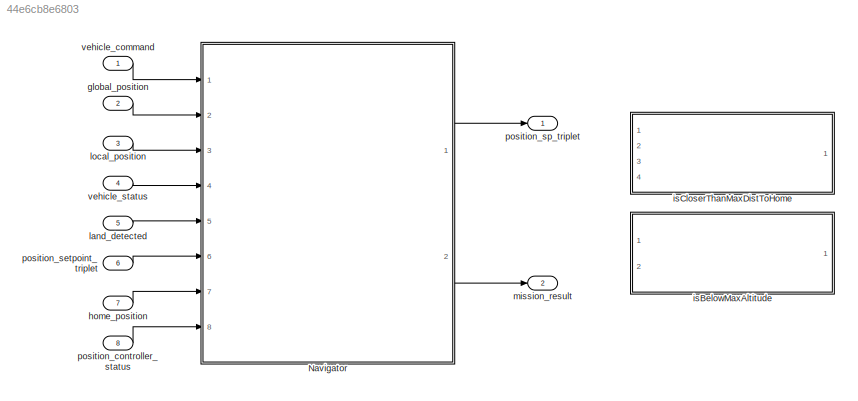
MODEL slx_44e6cb8e6803
KIND model
CONFIG AbsTol = auto
CONFIG EnableMultiTasking = off
CONFIG FixedStep = 0.05
CONFIG MaxStep = auto
CONFIG MinStep = auto
CONFIG RelTol = 1e-3
CONFIG SampleTimeConstraint = Unconstrained
CONFIG SolverName = FixedStepAuto
CONFIG StartTime = 0.0
CONFIG StopTime = 10.0
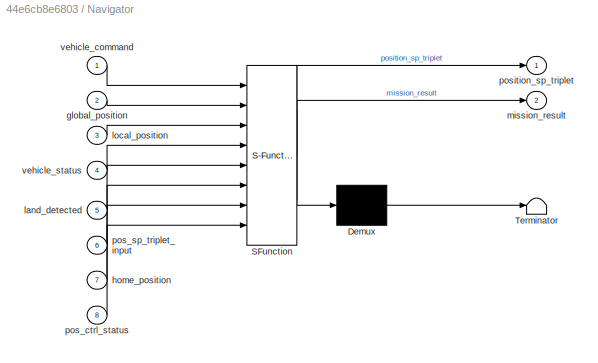
BLOCK [SubSystem] Navigator
  ErrorFcn = Stateflow.Translate.translate
  PermitHierarchicalResolution = ExplicitOnly
  Ports = [8, 2]
  RequestExecContextInheritance = off
  SFBlockType = Chart
  TreatAsAtomicUnit = on
BLOCK [Demux] Navigator/ Demux 
  Outputs = 1
  Ports = [1, 1]
BLOCK [S-Function] Navigator/ SFunction 
  EnableBusSupport = on
  FunctionName = sf_sfun
  Parameters = CONSTANTS_RADIUS_OF_EARTH,GF_ACTION,MIS_LTRMIN_ALT,MIS_TAKEOFF_ALT,MIS_YAW_ERR,MIS_YAW_TMT,MPC_ACC_HOR,MPC_JERK_AUTO,NAV_ACC_RAD,NAV_FW_ALTL_RAD,NAV_FW_ALT_RAD,NAV_GPSF_LT,NAV_GPSF_P,NAV_GPSF_R,NAV_GPSF_TR,NAV_LOITER_RAD,NAV_MC_ALT_RAD,RTL_CONE_ANG,RTL_DESCEND_ALT,RTL_LAND_DELAY,RTL_LOITER_RAD,RTL_MIN_DIST,RTL_PLD_MD,RTL_RETURN_ALT,RTL_TYPE,VT_B_DEC_MSS,VT_B_REV_DEL
  PortCounts = [8 3]
  Ports = [8, 3]
  SFcnIsStateOwnerBlock = off
  SFunctionDeploymentMode = off
  Tag = Stateflow S-Function 3
BLOCK [Terminator] Navigator/ Terminator 
BLOCK [Inport] Navigator/global_position
  Port = 2
BLOCK [Inport] Navigator/home_position
  Port = 7
BLOCK [Inport] Navigator/land_detected
  Port = 5
BLOCK [Inport] Navigator/local_position
  Port = 3
BLOCK [Outport] Navigator/mission_result
  Port = 2
BLOCK [Inport] Navigator/pos_ctrl_status
  Port = 8
BLOCK [Inport] Navigator/pos_sp_triplet_input
  Port = 6
BLOCK [Outport] Navigator/position_sp_triplet
BLOCK [Inport] Navigator/vehicle_command
BLOCK [Inport] Navigator/vehicle_status
  Port = 4
BLOCK [Inport] global_position
  OutDataTypeStr = Bus: px4_vehicle_global_position
  Port = 2
BLOCK [Inport] home_position
  OutDataTypeStr = Bus: px4_home_position
  Port = 7
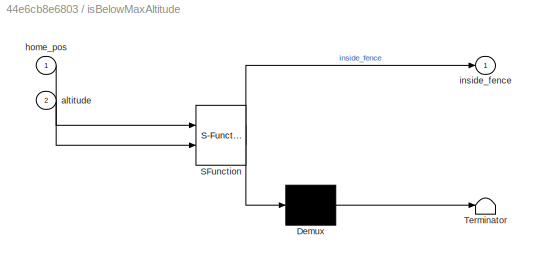
BLOCK [SubSystem] isBelowMaxAltitude
  Commented = on
  ErrorFcn = Stateflow.Translate.translate
  PermitHierarchicalResolution = ExplicitOnly
  Ports = [2, 1]
  RequestExecContextInheritance = off
  SFBlockType = MATLAB Function
  TreatAsAtomicUnit = on
BLOCK [Demux] isBelowMaxAltitude/ Demux 
  Outputs = 1
  Ports = [1, 1]
BLOCK [S-Function] isBelowMaxAltitude/ SFunction 
  EnableBusSupport = on
  FunctionName = sf_sfun
  Parameters = GF_ACTION,GF_MAX_HOR_DIST,GF_MAX_VER_DIST
  PortCounts = [2 2]
  Ports = [2, 2]
  SFcnIsStateOwnerBlock = off
  SFunctionDeploymentMode = off
  Tag = Stateflow S-Function 1
BLOCK [Terminator] isBelowMaxAltitude/ Terminator 
BLOCK [Inport] isBelowMaxAltitude/altitude
  Port = 2
BLOCK [Inport] isBelowMaxAltitude/home_pos
BLOCK [Outport] isBelowMaxAltitude/inside_fence
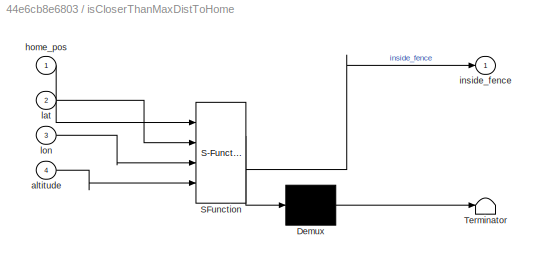
BLOCK [SubSystem] isCloserThanMaxDistToHome
  Commented = on
  ErrorFcn = Stateflow.Translate.translate
  PermitHierarchicalResolution = ExplicitOnly
  Ports = [4, 1]
  RequestExecContextInheritance = off
  SFBlockType = MATLAB Function
  TreatAsAtomicUnit = on
BLOCK [Demux] isCloserThanMaxDistToHome/ Demux 
  Outputs = 1
  Ports = [1, 1]
BLOCK [S-Function] isCloserThanMaxDistToHome/ SFunction 
  EnableBusSupport = on
  FunctionName = sf_sfun
  Parameters = CONSTANTS_RADIUS_OF_EARTH,GF_ACTION,GF_MAX_HOR_DIST,GF_MAX_VER_DIST
  PortCounts = [4 2]
  Ports = [4, 2]
  SFcnIsStateOwnerBlock = off
  SFunctionDeploymentMode = off
  Tag = Stateflow S-Function 2
BLOCK [Terminator] isCloserThanMaxDistToHome/ Terminator 
BLOCK [Inport] isCloserThanMaxDistToHome/altitude
  Port = 4
BLOCK [Inport] isCloserThanMaxDistToHome/home_pos
BLOCK [Outport] isCloserThanMaxDistToHome/inside_fence
BLOCK [Inport] isCloserThanMaxDistToHome/lat
  Port = 2
BLOCK [Inport] isCloserThanMaxDistToHome/lon
  Port = 3
BLOCK [Inport] land_detected
  OutDataTypeStr = Bus: px4_vehicle_land_detected
  Port = 5
BLOCK [Inport] local_position
  OutDataTypeStr = Bus: px4_vehicle_local_position
  Port = 3
BLOCK [Outport] mission_result
  Port = 2
BLOCK [Inport] position_controller_status
  OutDataTypeStr = Bus: px4_position_controller_status
  Port = 8
BLOCK [Inport] position_setpoint_triplet
  OutDataTypeStr = Bus: px4_position_setpoint_triplet
  Port = 6
BLOCK [Outport] position_sp_triplet
BLOCK [Inport] vehicle_command
  OutDataTypeStr = Bus: px4_vehicle_command
BLOCK [Inport] vehicle_status
  OutDataTypeStr = Bus: px4_vehicle_status
  Port = 4
LINE Navigator:1 -> position_sp_triplet:1
LINE Navigator:2 -> mission_result:1
LINE global_position:1 -> Navigator:2
LINE home_position:1 -> Navigator:7
LINE land_detected:1 -> Navigator:5
LINE local_position:1 -> Navigator:3
LINE position_controller_status:1 -> Navigator:8
LINE position_setpoint_triplet:1 -> Navigator:6
LINE vehicle_command:1 -> Navigator:1
LINE vehicle_status:1 -> Navigator:4
CHART Navigator states=88 transitions=74
  STATE_LABEL 'navigator'
  STATE_LABEL 'COMMAND_SUB'
  STATE_LABEL 'CMD_DO_GO_AROUND\nen:\n% 临时给输出赋值，后续删除\nposition_sp_triplet = pos_sp_triplet_input;\nmission_result.timestamp = uint64(getSimulationTime);\n%\n'
  STATE_LABEL 'not_running\n'
  STATE_LABEL 'running\nen:\n%publish_vehicle_command_ack(cmd, vehicle_command_s::VEHICLE_CMD_RESULT_ACCEPTED);'
  STATE_LABEL '[vehicle_command.command == PX4_VEHICLE_COMMAND.VEHICLE_CMD_DO_GO_AROUND]'
  STATE_LABEL '[vehicle_command.command ~= PX4_VEHICLE_COMMAND.VEHICLE_CMD_DO_GO_AROUND]'
  STATE_LABEL 'CMD_DO_REPOSITION\n'
  STATE_LABEL 'not_running\n\n'
  STATE_LABEL 'running\nen:\nget_reposition_setpoint;\n'
  STATE_LABEL 'get_reposition_setpoint'
  STATE_LABEL 'SCRIPT:\nfunction get_reposition_setpoint\n\n%% 判断reposition是否在禁飞区内\nif (GF_ACTION ~= PX4_GEOFENCE_RESULT.GF_ACTION_NONE &&  GF_ACTION ~= PX4_GEOFENCE_RESULT.GF_ACTION_WARN)\n    %mavlink_log_critical(&_mavlink_log_pub, "Reposition is outside geofence\\t");\n    %events::send(events::ID("navigator_reposition_outside_geofence"), {events::Log::Error, events::LogInternal::Info},\n    %"Reposition is outside ...<+3259ch>'
  STATE_LABEL '[vehicle_command.command == PX4_VEHICLE_COMMAND.VEHICLE_CMD_DO_REPOSITION ]'
  STATE_LABEL '[vehicle_command.command ~= PX4_VEHICLE_COMMAND.VEHICLE_CMD_DO_REPOSITION]'
  STATE_LABEL 'CMD_NAV_TAKEOFF'
  STATE_LABEL 'not_running\n'
  STATE_LABEL 'running\nen:\n% 前一航点\nif ((home_position.timestamp > 0) && home_position.valid_alt && home_position.valid_hpos && home_position.valid_lpos)\n    takeoff_triplet_.previous.valid = true;\n    takeoff_triplet_.previous.timestamp = uint64(getSimulationTime);\nelse\n    takeoff_triplet_.previous.valid = false;\nend\ntakeoff_triplet_.previous.lat = global_position.lat;\ntakeoff_triplet_.previous.lon = global_posi...<+1077ch>'
  STATE_LABEL '[vehicle_command.command == PX4_VEHICLE_COMMAND.VEHICLE_CMD_NAV_TAKEOFF]'
  STATE_LABEL '[vehicle_command.command ~= PX4_VEHICLE_COMMAND.VEHICLE_CMD_NAV_TAKEOFF]'
  STATE_LABEL 'CMD_DO_CHANGE_SPEED'
  STATE_LABEL 'not_running\n'
  STATE_LABEL 'running\nen,du:\nif (vehicle_command.param2 > eps)\n    % 速度指令有效\n    if (vehicle_status.vehicle_type == PX4_VEHICLE_STATUS.VEHICLE_TYPE_ROTARY_WING)\n        mission_cruising_speed_mc_ = vehicle_command.param2;\n    else\n        mission_cruising_speed_fw_ = vehicle_command.param2;\n    end\nelse\n    % 速度指令无效\n    if (vehicle_status.vehicle_type == PX4_VEHICLE_STATUS.VEHICLE_TYPE_ROTARY_WING)\n        missi...<+309ch>'
  STATE_LABEL '[vehicle_command.command==PX4_VEHICLE_COMMAND.VEHICLE_CMD_DO_CHANGE_SPEED]'
  STATE_LABEL '[vehicle_command.command~=PX4_VEHICLE_COMMAND.VEHICLE_CMD_DO_CHANGE_SPEED]'
  STATE_LABEL 'TRAFFIC'
  STATE_LABEL 'GEOFENCE_CHECK'
  STATE_LABEL 'SWITCH_NAV_STATE\nen,du:\nswitch uint8(vehicle_status.nav_state)\n    \n    case uint8(PX4_VEHICLE_STATUS.NAVIGATION_STATE_AUTO_MISSION)\n        navigation_mode_ = NAVIGATION_MODE.mission;\n        \n    case uint8(PX4_VEHICLE_STATUS.NAVIGATION_STATE_AUTO_LOITER)\n        navigation_mode_ == NAVIGATION_MODE.loiter;\n        \n    case uint8(PX4_VEHICLE_STATUS.NAVIGATION_STATE_AUTO_TAKEOFF)\n        navigati...<+872ch>'
  STATE_LABEL 'NAV_STATE_ACTION\n'
  STATE_LABEL 'MISSION\n'
  STATE_LABEL 'not_running\n'
  STATE_LABEL 'running\nen:\n'
  STATE_LABEL '[navigation_mode_ == NAVIGATION_MODE.mission]'
  STATE_LABEL '[navigation_mode_ ~= NAVIGATION_MODE.mission]'
  STATE_LABEL 'RTL'
  STATE_LABEL 'not_running\nen,du:\nrtl_state = PX4_RTL_STATE.NONE;\nfind_RTL_destination;'
  STATE_LABEL 'find_RTL_destination'
  STATE_LABEL 'SCRIPT:\nfunction find_RTL_destination\n\ndestination = initial;\n\n\n% if (getSimulationTime - destination_check_time) >= 1 && (home_position.timestamp > 0) && home_position.valid_alt && home_position.valid_hpos && home_position.valid_lpos\n%     destination_check_time = getSimulationTime;\n%     \n%     % set destination to home per default, then check if other valid landing spot is closer\n%     destinat...<+2404ch>'
  STATE_LABEL 'running\nen:\n% TO DO: output RTL message, home / mission / safe point\n% 垂起旋翼阶段取消mission方式的降落，因为此处已经不是mission模式了\ndeny_mission_landing_ = vehicle_status.is_vtol && (vehicle_status.vehicle_type == PX4_VEHICLE_STATUS.VEHICLE_TYPE_ROTARY_WING);\nget_rtl_alt_and_rad;\nprint_des_type;\n'
  STATE_LABEL 'get_rtl_alt_and_rad'
  STATE_LABEL 'SCRIPT:\n     function get_rtl_alt_and_rad\n\n% 默认盘旋半径\n% RTL_LOITER_RAD = 1;\n% RTL_CONE_ANG = 1;\nrtl_loiter_rad = RTL_LOITER_RAD;\n\n% 根据处于旋翼阶段还是固定翼阶段，返回rtl高度\nif vehicle_status.vehicle_type == PX4_VEHICLE_STATUS.VEHICLE_TYPE_ROTARY_WING\n    rtl_alt = calculate_return_alt_from_cone_half_angle(RTL_CONE_ANG);\nelse\n    rtl_alt = max([global_position.alt, destination.alt, home_position.alt + RTL_RETURN_ALT]...<+1632ch>'
CHART isBelowMaxAltitude states=1 transitions=1
  STATE_LABEL 'eML_blk_kernel()'
  STATE_LABEL 'SCRIPT:\nfunction inside_fence = isBelowMaxAltitude(home_pos,altitude, GF_MAX_HOR_DIST, GF_MAX_VER_DIST, GF_ACTION)\n\ninside_fence = true;\n\nisHomeRequired = (GF_MAX_HOR_DIST > eps) || (GF_MAX_VER_DIST > eps) || (GF_ACTION == PX4_GEOFENCE_RESULT.GF_ACTION_RTL);\nhome_position_valid = (home_pos.timestamp > 0) && home_pos.valid_alt && home_pos.valid_hpos && home_pos.valid_lpos;\n\nif isHomeRequired && hom...<+167ch>'
CHART isCloserThanMaxDistToHome states=1 transitions=1
  STATE_LABEL 'eML_blk_kernel()'
  STATE_LABEL 'SCRIPT:\nfunction inside_fence = isCloserThanMaxDistToHome(home_pos,lat,lon,altitude, GF_MAX_HOR_DIST, GF_MAX_VER_DIST, GF_ACTION, CONSTANTS_RADIUS_OF_EARTH)\n\ninside_fence = true;\n\nisHomeRequired = (GF_MAX_HOR_DIST > eps) || (GF_MAX_VER_DIST > eps) || (GF_ACTION == PX4_GEOFENCE_RESULT.GF_ACTION_RTL);\nhome_position_valid = (home_pos.timestamp > 0) && home_pos.valid_alt && home_pos.valid_hpos && home...<+317ch>'
CHART  states=0 transitions=0
CHART  states=0 transitions=0
CHART  states=0 transitions=0
